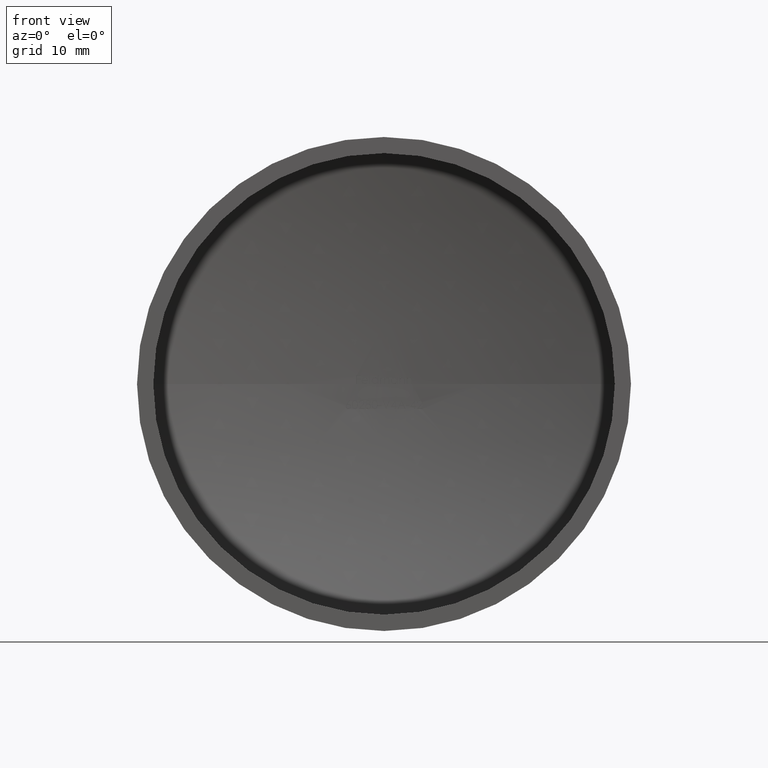
[diagram: clean part render]
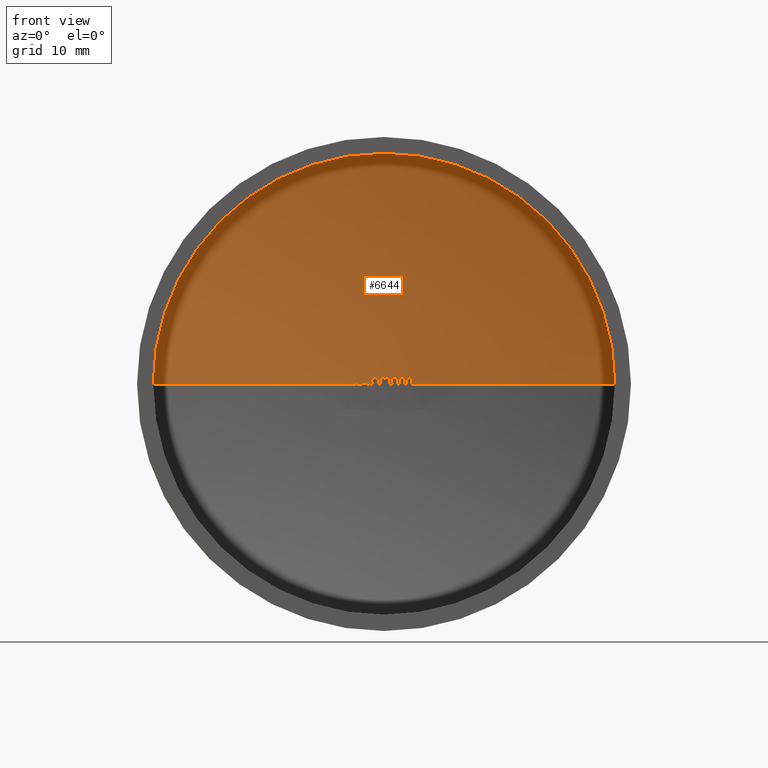
[diagram: same view with one face highlighted and labeled with its STEP entity id]
A machine part, front view. The second image highlights one B-rep face of the part: STEP entity #6644.
In plain terms, the highlighted spherical surface has radius 74.1067 mm.
Its self-contained STEP definition (entity closure, byte-faithful):
#4 = CARTESIAN_POINT ( 'NONE',  ( 0.0000000000000000000, -55.60666666666665500, 0.2747596153846200700 ) ) ;
#7 = CARTESIAN_POINT ( 'NONE',  ( 0.05066105627765697000, 18.49811280627313400, 0.5280834822135470600 ) ) ;
#8 = DIRECTION ( 'NONE',  ( 0.0000000000000000000, 0.0000000000000000000, 1.000000000000000000 ) ) ;
#14 = EDGE_CURVE ( 'NONE', #7552, #7424, #410, .T. ) ;
#15 = CARTESIAN_POINT ( 'NONE',  ( -0.5342548076922977200, 18.49807418197878300, 4.684274006738621800E-015 ) ) ;
#21 = DIRECTION ( 'NONE',  ( -3.555239804059509600E-016, -1.000000000000000000, 0.0000000000000000000 ) ) ;
#63 = CARTESIAN_POINT ( 'NONE',  ( -1.043093693751054000, 18.49266601434318600, 0.05672993365770655900 ) ) ;
#81 = ORIENTED_EDGE ( 'NONE', *, *, #5826, .F. ) ;
#91 = VERTEX_POINT ( 'NONE', #8479 ) ;
#101 = ORIENTED_EDGE ( 'NONE', *, *, #10779, .F. ) ;
#169 = CARTESIAN_POINT ( 'NONE',  ( -0.6054887820512984100, -55.60666666666665500, 0.0000000000000000000 ) ) ;
#191 = AXIS2_PLACEMENT_3D ( 'NONE', #8519, #631, #5612 ) ;
#211 = VERTEX_POINT ( 'NONE', #3797 ) ;
#213 = DIRECTION ( 'NONE',  ( -1.000000000000000000, 1.628848334250523600E-016, 0.0000000000000000000 ) ) ;
#223 = DIRECTION ( 'NONE',  ( -1.000000000000000000, 1.083564322627018500E-012, 0.0000000000000000000 ) ) ;
#234 = CARTESIAN_POINT ( 'NONE',  ( -2.043311245687180900, 18.47170804972493800, 0.1353877603241394600 ) ) ;
#246 = VERTEX_POINT ( 'NONE', #11748 ) ;
#282 = ORIENTED_EDGE ( 'NONE', *, *, #4225, .F. ) ;
#302 = EDGE_CURVE ( 'NONE', #8993, #11407, #3411, .T. ) ;
#316 = DIRECTION ( 'NONE',  ( -0.8853521223964576600, 2.178738343398190700E-012, 0.4649210893991452300 ) ) ;
#317 = CARTESIAN_POINT ( 'NONE',  ( -1.874030332595353600, 18.47630070611719700, -6.207692712189953600E-016 ) ) ;
#322 = ORIENTED_EDGE ( 'NONE', *, *, #12520, .F. ) ;
#362 = ORIENTED_EDGE ( 'NONE', *, *, #2696, .T. ) ;
#370 = EDGE_CURVE ( 'NONE', #11405, #5147, #10157, .T. ) ;
#379 = CIRCLE ( 'NONE', #12518, 74.08183610918798900 ) ;
#399 = CARTESIAN_POINT ( 'NONE',  ( -1.696892095007799300, 18.47830196389708800, 0.5814064970193278900 ) ) ;
#403 = CARTESIAN_POINT ( 'NONE',  ( 2.286341333750979900, 18.46246044500906400, 0.5804598663080393600 ) ) ;
#410 = CIRCLE ( 'NONE', #7154, 74.10439655427268200 ) ;
#437 = CARTESIAN_POINT ( 'NONE',  ( -0.2197440905448643200, 18.49755217920244400, 0.5608085436698764200 ) ) ;
#471 = DIRECTION ( 'NONE',  ( -1.000000000000000000, 3.548256100095867200E-016, -0.0000000000000000000 ) ) ;
#490 = CARTESIAN_POINT ( 'NONE',  ( 2.152283653846163200, 18.46646789469970400, 0.5800480769230815800 ) ) ;
#522 = ORIENTED_EDGE ( 'NONE', *, *, #10106, .F. ) ;
#534 = CARTESIAN_POINT ( 'NONE',  ( -0.2575337182896894600, 18.49765162660669300, 0.5308713528150776900 ) ) ;
#558 = VERTEX_POINT ( 'NONE', #5687 ) ;
#582 = CARTESIAN_POINT ( 'NONE',  ( -0.2356528369477877700, 18.49758592678110200, 0.5498660929433167900 ) ) ;
#585 = CARTESIAN_POINT ( 'NONE',  ( 2.589863782051264900, -55.60666666666665500, 0.0000000000000000000 ) ) ;
#594 = CARTESIAN_POINT ( 'NONE',  ( -0.9864561351360406900, 18.49346130273808300, 0.01659212628795113400 ) ) ;
#624 = CARTESIAN_POINT ( 'NONE',  ( -1.608716629506450300, 18.48240274425509400, 0.1474054408277837600 ) ) ;
#631 = DIRECTION ( 'NONE',  ( -0.0000000000000000000, 0.0000000000000000000, -1.000000000000000000 ) ) ;
#660 = EDGE_CURVE ( 'NONE', #1206, #246, #11162, .T. ) ;
#663 = DIRECTION ( 'NONE',  ( -1.224646799147353200E-016, 1.887011945462010500E-032, 1.000000000000000000 ) ) ;
#668 = VERTEX_POINT ( 'NONE', #2970 ) ;
#754 = AXIS2_PLACEMENT_3D ( 'NONE', #9756, #12505, #10545 ) ;
#756 = AXIS2_PLACEMENT_3D ( 'NONE', #8837, #3927, #6849 ) ;
#779 = ORIENTED_EDGE ( 'NONE', *, *, #6042, .T. ) ;
#821 = CARTESIAN_POINT ( 'NONE',  ( 2.589863782051291500, 18.45413876143830800, 0.2962252103365430900 ) ) ;
#869 = CARTESIAN_POINT ( 'NONE',  ( 2.578496398894723800, 18.45386147609267300, 0.4344880739606071200 ) ) ;
#893 = VERTEX_POINT ( 'NONE', #10958 ) ;
#894 = CARTESIAN_POINT ( 'NONE',  ( -0.3002003205128393500, -55.60666666666665500, 0.0000000000000000000 ) ) ;
#926 = CARTESIAN_POINT ( 'NONE',  ( -2.008529856845667500, 18.47237094073812700, 0.2466409376561771700 ) ) ;
#959 = ORIENTED_EDGE ( 'NONE', *, *, #2137, .F. ) ;
#1007 = CARTESIAN_POINT ( 'NONE',  ( -1.287299679487170100, 18.48881837783275400, 4.684274006738621800E-015 ) ) ;
#1017 = CARTESIAN_POINT ( 'NONE',  ( -2.009815705128197300, 18.47223176216811100, 0.2747596153846200700 ) ) ;
#1041 = ORIENTED_EDGE ( 'NONE', *, *, #3809, .T. ) ;
#1054 = CARTESIAN_POINT ( 'NONE',  ( -2.035141091583788900, 18.47066646842905200, 0.4540729119043393500 ) ) ;
#1069 = EDGE_CURVE ( 'NONE', #6619, #10557, #6026, .T. ) ;
#1105 = AXIS2_PLACEMENT_3D ( 'NONE', #1770, #1818, #5782 ) ;
#1141 = EDGE_CURVE ( 'NONE', #10760, #91, #7728, .T. ) ;
#1152 = CARTESIAN_POINT ( 'NONE',  ( -1.143708761880699600, 18.49044319335287400, 0.3314743180730902500 ) ) ;
#1180 = CIRCLE ( 'NONE', #12271, 74.10666666666665500 ) ;
#1197 = AXIS2_PLACEMENT_3D ( 'NONE', #8255, #2317, #9225 ) ;
#1206 = VERTEX_POINT ( 'NONE', #9952 ) ;
#1221 = CARTESIAN_POINT ( 'NONE',  ( -2.498277243589761600, -55.60666666666665500, 0.0000000000000000000 ) ) ;
#1223 = CARTESIAN_POINT ( 'NONE',  ( 0.1897252796958431300, 18.49762059824084700, 0.5631642986092110200 ) ) ;
#1225 = ORIENTED_EDGE ( 'NONE', *, *, #6889, .F. ) ;
#1230 = CIRCLE ( 'NONE', #4852, 74.10666666666665500 ) ;
#1239 = DIRECTION ( 'NONE',  ( -3.571340827431456200E-016, -1.000000000000000000, 0.0000000000000000000 ) ) ;
#1240 = CIRCLE ( 'NONE', #756, 74.10324295558288600 ) ;
#1300 = EDGE_CURVE ( 'NONE', #7880, #7058, #2159, .T. ) ;
#1320 = CIRCLE ( 'NONE', #5103, 74.06454384696230900 ) ;
#1321 = DIRECTION ( 'NONE',  ( 1.540862187183947000E-016, 1.000000000000000000, -0.0000000000000000000 ) ) ;
#1330 = CARTESIAN_POINT ( 'NONE',  ( -0.1820173534637724000, 18.49752656585533500, 0.5778261105708482100 ) ) ;
#1345 = CARTESIAN_POINT ( 'NONE',  ( 0.7943935996191957600, 18.49576918712202600, 0.01659202789704676900 ) ) ;
#1349 = CIRCLE ( 'NONE', #3265, 74.09187352786638300 ) ;
#1356 = EDGE_CURVE ( 'NONE', #12026, #9048, #4064, .T. ) ;
#1372 = VERTEX_POINT ( 'NONE', #10417 ) ;
#1398 = VERTEX_POINT ( 'NONE', #7470 ) ;
#1425 = CIRCLE ( 'NONE', #2694, 74.07451231047211600 ) ;
#1538 = ORIENTED_EDGE ( 'NONE', *, *, #1300, .F. ) ;
#1544 = DIRECTION ( 'NONE',  ( -1.000000000000000000, 3.548256100095867200E-016, -0.0000000000000000000 ) ) ;
#1557 = DIRECTION ( 'NONE',  ( -0.0000000000000000000, -0.0000000000000000000, 1.000000000000000000 ) ) ;
#1590 = ORIENTED_EDGE ( 'NONE', *, *, #302, .F. ) ;
#1608 = CARTESIAN_POINT ( 'NONE',  ( -0.2773739530890266800, 18.49772822583843600, 0.5100305852008952800 ) ) ;
#1621 = EDGE_CURVE ( 'NONE', #1765, #10385, #3713, .T. ) ;
#1641 = DIRECTION ( 'NONE',  ( -0.0000000000000000000, 0.0000000000000000000, -1.000000000000000000 ) ) ;
#1657 = CIRCLE ( 'NONE', #4343, 21.29999999999999400 ) ;
#1658 = EDGE_CURVE ( 'NONE', #6473, #668, #3645, .T. ) ;
#1667 = B_SPLINE_CURVE_WITH_KNOTS ( 'NONE', 3,
 ( #2195, #12081, #9097, #8916, #10969, #11952, #8038, #11991 ),
 .UNSPECIFIED., .F., .F.,
 ( 4, 2, 2, 4 ),
 ( 0.0000000000000000000, 0.0001925376673003478800, 0.0002888065009505216400, 0.0003850753346006954800 ),
 .UNSPECIFIED. ) ;
#1696 = AXIS2_PLACEMENT_3D ( 'NONE', #6658, #663, #10581 ) ;
#1698 = CIRCLE ( 'NONE', #1696, 74.10666666666665500 ) ;
#1722 = CARTESIAN_POINT ( 'NONE',  ( -1.532721009298437800, 18.48280775393716600, 0.4470812287143138300 ) ) ;
#1728 = CARTESIAN_POINT ( 'NONE',  ( -1.636551691630240500, 18.48185408225441200, 0.1125810353599013700 ) ) ;
#1733 = EDGE_CURVE ( 'NONE', #8003, #10930, #1240, .T. ) ;
#1765 = VERTEX_POINT ( 'NONE', #11096 ) ;
#1770 = CARTESIAN_POINT ( 'NONE',  ( 0.0000000000000000000, -55.60666666666665500, 0.8141025641025687600 ) ) ;
#1813 = B_SPLINE_CURVE_WITH_KNOTS ( 'NONE', 3,
 ( #3115, #3195, #8175, #2232, #10025, #9053, #11998, #6077, #1152, #10071 ),
 .UNSPECIFIED., .F., .F.,
 ( 4, 2, 2, 2, 4 ),
 ( 1.084202172485504400E-019, 0.0001177946587169052000, 0.0002355893174338100000, 0.0003533839761507145400, 0.0004711786348676191400 ),
 .UNSPECIFIED. ) ;
#1818 = DIRECTION ( 'NONE',  ( -0.0000000000000000000, -0.0000000000000000000, 1.000000000000000000 ) ) ;
#1823 = CIRCLE ( 'NONE', #2697, 74.10439655427268200 ) ;
#1877 = CARTESIAN_POINT ( 'NONE',  ( 1.736352759386079500, 18.47732230303316600, 0.5890071150332940600 ) ) ;
#1883 = ORIENTED_EDGE ( 'NONE', *, *, #6281, .F. ) ;
#1896 = B_SPLINE_CURVE_WITH_KNOTS ( 'NONE', 3,
 ( #12298, #1924, #8731, #3922, #11848, #9926 ),
 .UNSPECIFIED., .F., .F.,
 ( 4, 2, 4 ),
 ( 8.594326404734144600E-005, 0.0002067113809952575800, 0.0003274794979431737100 ),
 .UNSPECIFIED. ) ;
#1908 = EDGE_CURVE ( 'NONE', #8832, #10760, #10979, .T. ) ;
#1924 = CARTESIAN_POINT ( 'NONE',  ( -1.664765156588535100, 18.48130896417959000, 0.01019131546964269200 ) ) ;
#1991 = ORIENTED_EDGE ( 'NONE', *, *, #7491, .F. ) ;
#1992 = B_SPLINE_CURVE_WITH_KNOTS ( 'NONE', 3,
 ( #6562, #624, #1728, #8671, #9615, #10547 ),
 .UNSPECIFIED., .F., .F.,
 ( 4, 2, 4 ),
 ( 8.131516293641283300E-020, 0.0001286050442404798600, 0.0002572100884809596600 ),
 .UNSPECIFIED. ) ;
#2023 = AXIS2_PLACEMENT_3D ( 'NONE', #5741, #8800, #2880 ) ;
#2046 = CARTESIAN_POINT ( 'NONE',  ( 2.081049679487188400, 18.46850340336699100, 0.5800480769230815800 ) ) ;
#2069 = CARTESIAN_POINT ( 'NONE',  ( -1.798180839342941700, 18.47815540959721400, 0.06105769230769700400 ) ) ;
#2075 = AXIS2_PLACEMENT_3D ( 'NONE', #6520, #11414, #9312 ) ;
#2099 = CARTESIAN_POINT ( 'NONE',  ( -0.6054887820512721000, 18.49305441779071300, 0.8141025641025687600 ) ) ;
#2106 = CIRCLE ( 'NONE', #3854, 74.07744107807685900 ) ;
#2109 = CARTESIAN_POINT ( 'NONE',  ( 0.0000000000000000000, -55.60666666666665500, 0.0000000000000000000 ) ) ;
#2120 = CARTESIAN_POINT ( 'NONE',  ( -0.1209624566836962500, 18.49755769712012600, 0.5894505735695804200 ) ) ;
#2137 = EDGE_CURVE ( 'NONE', #668, #11750, #11343, .T. ) ;
#2156 = ORIENTED_EDGE ( 'NONE', *, *, #2635, .F. ) ;
#2159 = B_SPLINE_CURVE_WITH_KNOTS ( 'NONE', 3,
 ( #5181, #7307, #10284, #5301, #1223, #6182, #10171, #8140 ),
 .UNSPECIFIED., .F., .F.,
 ( 4, 2, 2, 4 ),
 ( 0.0000000000000000000, 6.662288295076058800E-005, 0.0001332457659015212600, 0.0002664915318030427300 ),
 .UNSPECIFIED. ) ;
#2179 = CARTESIAN_POINT ( 'NONE',  ( -2.081049679487172000, 18.47021287416464500, 0.2884339943910302900 ) ) ;
#2195 = CARTESIAN_POINT ( 'NONE',  ( 0.4935496794871870300, 18.49769039889563500, 0.3141927083333379600 ) ) ;
#2199 = DIRECTION ( 'NONE',  ( 1.000000000000000000, 0.0000000000000000000, 1.224646799147353200E-016 ) ) ;
#2218 = VERTEX_POINT ( 'NONE', #9575 ) ;
#2224 = EDGE_CURVE ( 'NONE', #558, #7618, #1698, .T. ) ;
#2231 = CARTESIAN_POINT ( 'NONE',  ( -1.787527544070505800, 18.47608723010547700, 0.5902243589743636500 ) ) ;
#2232 = CARTESIAN_POINT ( 'NONE',  ( -0.9927749141653752200, 18.49129141051156800, 0.5537426519913462000 ) ) ;
#2270 = VERTEX_POINT ( 'NONE', #5695 ) ;
#2274 = EDGE_CURVE ( 'NONE', #3083, #6473, #5701, .T. ) ;
#2296 = EDGE_CURVE ( 'NONE', #5563, #5136, #6640, .T. ) ;
#2297 = CIRCLE ( 'NONE', #9413, 74.10666666666665500 ) ;
#2317 = DIRECTION ( 'NONE',  ( -0.0000000000000000000, 0.0000000000000000000, -1.000000000000000000 ) ) ;
#2320 = CARTESIAN_POINT ( 'NONE',  ( -1.874030332595353600, 18.47630070611719700, -6.207692712189953600E-016 ) ) ;
#2329 = CARTESIAN_POINT ( 'NONE',  ( 0.0000000000000000000, -55.60666666666665500, 0.0000000000000000000 ) ) ;
#2359 = EDGE_CURVE ( 'NONE', #5226, #3390, #11584, .T. ) ;
#2391 = CARTESIAN_POINT ( 'NONE',  ( -1.553950070112172200, 18.48217629411369600, 0.4760591947115431200 ) ) ;
#2396 = FACE_OUTER_BOUND ( 'NONE', #10602, .T. ) ;
#2402 = CARTESIAN_POINT ( 'NONE',  ( 1.538826675526062200, 18.48206110626480800, 0.5406571205251827800 ) ) ;
#2427 = DIRECTION ( 'NONE',  ( 3.541125742285483000E-016, 1.000000000000000000, -1.847411112976260700E-013 ) ) ;
#2451 = ORIENTED_EDGE ( 'NONE', *, *, #3830, .F. ) ;
#2483 = EDGE_CURVE ( 'NONE', #10395, #8836, #10831, .T. ) ;
#2514 = ORIENTED_EDGE ( 'NONE', *, *, #5174, .F. ) ;
#2526 = ORIENTED_EDGE ( 'NONE', *, *, #2274, .F. ) ;
#2539 = CARTESIAN_POINT ( 'NONE',  ( -2.014267828525633700, 18.47105162862099100, 0.4821013621794918400 ) ) ;
#2587 = CARTESIAN_POINT ( 'NONE',  ( -1.874913986319146900, 18.47400395536118700, 0.5821107416868394100 ) ) ;
#2618 = CARTESIAN_POINT ( 'NONE',  ( 2.589863782051291500, 18.45473117346907400, 4.684274006738621800E-015 ) ) ;
#2622 = CIRCLE ( 'NONE', #3127, 74.07451231047211600 ) ;
#2635 = EDGE_CURVE ( 'NONE', #5147, #8798, #5709, .T. ) ;
#2690 = CARTESIAN_POINT ( 'NONE',  ( 1.859677344651412300, 18.47479467738343600, 0.5271992639889260300 ) ) ;
#2694 = AXIS2_PLACEMENT_3D ( 'NONE', #12530, #10687, #2982 ) ;
#2696 = EDGE_CURVE ( 'NONE', #4889, #3887, #1230, .T. ) ;
#2697 = AXIS2_PLACEMENT_3D ( 'NONE', #11580, #10513, #3719 ) ;
#2702 = ORIENTED_EDGE ( 'NONE', *, *, #5249, .F. ) ;
#2710 = CARTESIAN_POINT ( 'NONE',  ( 0.6981847243553225300, 18.49519188754984400, 0.4761451062352789500 ) ) ;
#2731 = ORIENTED_EDGE ( 'NONE', *, *, #660, .F. ) ;
#2732 = ORIENTED_EDGE ( 'NONE', *, *, #1356, .F. ) ;
#2741 = CIRCLE ( 'NONE', #8512, 74.10666666666665500 ) ;
#2749 = CARTESIAN_POINT ( 'NONE',  ( -0.5342548076922977200, 18.49360224823014300, 0.8141025641025687600 ) ) ;
#2783 = DIRECTION ( 'NONE',  ( 1.000000000000000000, -3.548256100095867200E-016, -0.0000000000000000000 ) ) ;
#2795 = CARTESIAN_POINT ( 'NONE',  ( 0.4935496794871870300, 18.49769039889563500, 0.3141927083333379600 ) ) ;
#2799 = DIRECTION ( 'NONE',  ( -0.0000000000000000000, 0.0000000000000000000, -1.000000000000000000 ) ) ;
#2806 = CARTESIAN_POINT ( 'NONE',  ( 0.0000000000000000000, -55.60666666666665500, 0.4681089743589790200 ) ) ;
#2825 = CARTESIAN_POINT ( 'NONE',  ( 2.504589535343154000, 18.45562226097474200, 0.5510317446698561600 ) ) ;
#2847 = CARTESIAN_POINT ( 'NONE',  ( -1.287299679487170100, 18.48434588542874500, 0.8141025641025687600 ) ) ;
#2880 = DIRECTION ( 'NONE',  ( -1.000000000000000000, -1.088901616646180300E-012, 0.0000000000000000000 ) ) ;
#2885 = ORIENTED_EDGE ( 'NONE', *, *, #5698, .F. ) ;
#2898 = CIRCLE ( 'NONE', #9582, 74.10666666666665500 ) ;
#2905 = CARTESIAN_POINT ( 'NONE',  ( 1.480649038461521400, -55.60666666666665500, 0.0000000000000000000 ) ) ;
#2949 = CARTESIAN_POINT ( 'NONE',  ( -2.080108460737630300, 18.47010334819623600, 0.3233538205564962500 ) ) ;
#2970 = CARTESIAN_POINT ( 'NONE',  ( 2.372981770833342300, 18.45964576459867200, 0.5902243589743636500 ) ) ;
#2982 = DIRECTION ( 'NONE',  ( -3.571340827431456200E-016, -1.000000000000000000, 0.0000000000000000000 ) ) ;
#2986 = DIRECTION ( 'NONE',  ( 1.000000000000000000, -3.548256100095867200E-016, -0.0000000000000000000 ) ) ;
#2991 = CARTESIAN_POINT ( 'NONE',  ( -2.014267828525633700, 18.47105162862099100, 0.4821013621794918400 ) ) ;
#2993 = CARTESIAN_POINT ( 'NONE',  ( -2.081049679487172000, 18.47021287416464500, 0.2884339943910302900 ) ) ;
#3012 = ORIENTED_EDGE ( 'NONE', *, *, #8239, .F. ) ;
#3013 = CARTESIAN_POINT ( 'NONE',  ( 0.07030896038970899100, 18.49836238468809000, 0.4893986172558689700 ) ) ;
#3014 = DIRECTION ( 'NONE',  ( -1.000000000000000000, 1.872677376009507700E-016, 0.0000000000000000000 ) ) ;
#3015 = VERTEX_POINT ( 'NONE', #2391 ) ;
#3030 = CARTESIAN_POINT ( 'NONE',  ( 1.147242004199455100, 18.48938671174167000, 0.5087672027378591400 ) ) ;
#3072 = CARTESIAN_POINT ( 'NONE',  ( 2.081049679487162200, -55.60666666666665500, 0.0000000000000000000 ) ) ;
#3083 = VERTEX_POINT ( 'NONE', #2618 ) ;
#3093 = CARTESIAN_POINT ( 'NONE',  ( -0.6337943017023882600, 18.49558892450381000, 0.5041731943620729700 ) ) ;
#3110 = DIRECTION ( 'NONE',  ( 3.541171164500310700E-016, 1.000000000000000000, 1.660893644839234200E-013 ) ) ;
#3115 = CARTESIAN_POINT ( 'NONE',  ( -0.8401792868589645900, 18.49288649269086100, 0.5902243589743636500 ) ) ;
#3127 = AXIS2_PLACEMENT_3D ( 'NONE', #12112, #12037, #1239 ) ;
#3159 = CARTESIAN_POINT ( 'NONE',  ( 0.0000000000000000000, -55.60666666666665500, 0.0000000000000000000 ) ) ;
#3165 = CARTESIAN_POINT ( 'NONE',  ( 0.0000000000000000000, -55.60666666666665500, 0.0000000000000000000 ) ) ;
#3189 = SPHERICAL_SURFACE ( 'NONE', #8708, 74.10666666666665500 ) ;
#3195 = CARTESIAN_POINT ( 'NONE',  ( -0.8798126087690755200, 18.49244615660750300, 0.5890885381431688600 ) ) ;
#3206 = VERTEX_POINT ( 'NONE', #5120 ) ;
#3207 = VERTEX_POINT ( 'NONE', #10009 ) ;
#3240 = CARTESIAN_POINT ( 'NONE',  ( -21.29999999999998600, 15.37296452739100500, 0.0000000000000000000 ) ) ;
#3256 = CARTESIAN_POINT ( 'NONE',  ( 1.918126692175456500, 18.47444075342073300, 0.3310104072752084700 ) ) ;
#3260 = CARTESIAN_POINT ( 'NONE',  ( -0.2671245571334133200, -55.60666666666665500, -0.5086869556894660900 ) ) ;
#3265 = AXIS2_PLACEMENT_3D ( 'NONE', #2905, #9873, #4888 ) ;
#3266 = ORIENTED_EDGE ( 'NONE', *, *, #14, .F. ) ;
#3286 = VERTEX_POINT ( 'NONE', #4552 ) ;
#3292 = CARTESIAN_POINT ( 'NONE',  ( -2.080134287794697600, 18.47036288979697700, 0.2565108698060550300 ) ) ;
#3295 = CARTESIAN_POINT ( 'NONE',  ( -2.182812499999991400, 18.46442044648424700, 0.7123397435897482800 ) ) ;
#3298 = DIRECTION ( 'NONE',  ( -1.000000000000000000, -1.080942493986026800E-012, 0.0000000000000000000 ) ) ;
#3316 = B_SPLINE_CURVE_WITH_KNOTS ( 'NONE', 3,
 ( #5636, #9694, #8700, #7724, #1722, #8619 ),
 .UNSPECIFIED., .F., .F.,
 ( 4, 2, 4 ),
 ( 0.0000000000000000000, 0.0001078334363152171600, 0.0002156668726304343200 ),
 .UNSPECIFIED. ) ;
#3390 = VERTEX_POINT ( 'NONE', #4004 ) ;
#3407 = CARTESIAN_POINT ( 'NONE',  ( 1.614702159085610100, 18.48014515297195000, 0.5804584478959458100 ) ) ;
#3411 = CIRCLE ( 'NONE', #2023, 74.10439655427268200 ) ;
#3412 = DIRECTION ( 'NONE',  ( -1.224646799147353200E-016, 1.887011945462010500E-032, 1.000000000000000000 ) ) ;
#3413 = CARTESIAN_POINT ( 'NONE',  ( -0.2505368558799602700, 18.49762725045939500, 0.5375798062616176100 ) ) ;
#3493 = CARTESIAN_POINT ( 'NONE',  ( -1.787527544070505800, 18.47608723010547700, 0.5902243589743636500 ) ) ;
#3537 = ORIENTED_EDGE ( 'NONE', *, *, #5395, .F. ) ;
#3547 = CARTESIAN_POINT ( 'NONE',  ( -1.831114630434588400, 18.47504542124350700, 0.5889823771727069600 ) ) ;
#3583 = CARTESIAN_POINT ( 'NONE',  ( -1.953204717665862900, 18.47226074718819400, 0.5453620125871462300 ) ) ;
#3595 = CARTESIAN_POINT ( 'NONE',  ( -0.9230864176096714700, 18.49425070896418400, 1.514071393217061900E-017 ) ) ;
#3612 = CARTESIAN_POINT ( 'NONE',  ( -2.182812499999991400, 18.46683627558540100, 0.3866987179487225700 ) ) ;
#3627 = B_SPLINE_CURVE_WITH_KNOTS ( 'NONE', 3,
 ( #5236, #12258, #11237, #399, #6221, #7218 ),
 .UNSPECIFIED., .F., .F.,
 ( 4, 2, 4 ),
 ( 0.0000000000000000000, 0.0001342962369920497400, 0.0002685924739840994800 ),
 .UNSPECIFIED. ) ;
#3645 = B_SPLINE_CURVE_WITH_KNOTS ( 'NONE', 3,
 ( #821, #12618, #8736, #869, #7813, #11683, #2825, #11566, #9745, #3835 ),
 .UNSPECIFIED., .F., .F.,
 ( 4, 2, 2, 2, 4 ),
 ( 5.421010862427522200E-020, 0.0001040471827471912700, 0.0002080943654943824800, 0.0003121415482415737100, 0.0004161887309887649100 ),
 .UNSPECIFIED. ) ;
#3690 = VERTEX_POINT ( 'NONE', #10461 ) ;
#3706 = EDGE_CURVE ( 'NONE', #10385, #10146, #1823, .T. ) ;
#3711 = DIRECTION ( 'NONE',  ( -3.541031697138002700E-016, -1.000000000000000000, 0.0000000000000000000 ) ) ;
#3713 = CIRCLE ( 'NONE', #4008, 74.09618105185421700 ) ;
#3719 = DIRECTION ( 'NONE',  ( -1.000000000000000000, -1.084500689998801200E-012, 0.0000000000000000000 ) ) ;
#3730 = DIRECTION ( 'NONE',  ( -0.0000000000000000000, -0.0000000000000000000, 1.000000000000000000 ) ) ;
#3736 = VERTEX_POINT ( 'NONE', #10668 ) ;
#3797 = CARTESIAN_POINT ( 'NONE',  ( 1.480649038461547600, 18.48368152843929500, 0.4754231770833379800 ) ) ;
#3809 = EDGE_CURVE ( 'NONE', #8832, #9222, #2741, .T. ) ;
#3820 = ORIENTED_EDGE ( 'NONE', *, *, #10981, .F. ) ;
#3822 = ORIENTED_EDGE ( 'NONE', *, *, #1658, .F. ) ;
#3830 = EDGE_CURVE ( 'NONE', #7058, #11405, #6400, .T. ) ;
#3835 = CARTESIAN_POINT ( 'NONE',  ( 2.372981770833342300, 18.45964576459867200, 0.5902243589743636500 ) ) ;
#3854 = AXIS2_PLACEMENT_3D ( 'NONE', #3072, #8009, #5000 ) ;
#3860 = EDGE_CURVE ( 'NONE', #6925, #2270, #6153, .T. ) ;
#3875 = CARTESIAN_POINT ( 'NONE',  ( -1.140303931640450600, 18.49088870356599300, 0.2261230623103861700 ) ) ;
#3879 = ORIENTED_EDGE ( 'NONE', *, *, #10585, .F. ) ;
#3887 = VERTEX_POINT ( 'NONE', #2320 ) ;
#3909 = CARTESIAN_POINT ( 'NONE',  ( -2.569511217948735800, -55.60666666666665500, 0.0000000000000000000 ) ) ;
#3914 = DIRECTION ( 'NONE',  ( 1.000000000000000000, -3.548256100095867200E-016, -0.0000000000000000000 ) ) ;
#3922 = CARTESIAN_POINT ( 'NONE',  ( -1.565010912444176700, 18.48343991480959000, 0.08098918739304837600 ) ) ;
#3927 = DIRECTION ( 'NONE',  ( -0.0000000000000000000, 0.0000000000000000000, -1.000000000000000000 ) ) ;
#3978 = CARTESIAN_POINT ( 'NONE',  ( -0.1519245814674372000, 18.49753403126227300, 0.5852441655852319600 ) ) ;
#4004 = CARTESIAN_POINT ( 'NONE',  ( -2.498277243589734900, 18.45639787461957200, 0.4681089743589790200 ) ) ;
#4008 = AXIS2_PLACEMENT_3D ( 'NONE', #10654, #2783, #3711 ) ;
#4021 = CIRCLE ( 'NONE', #4377, 74.09421320694221400 ) ;
#4061 = DIRECTION ( 'NONE',  ( 3.555279628127301000E-016, 1.000000000000000000, 5.844214001626824000E-013 ) ) ;
#4064 = B_SPLINE_CURVE_WITH_KNOTS ( 'NONE', 3,
 ( #3493, #3547, #2587, #3583, #8471, #2539 ),
 .UNSPECIFIED., .F., .F.,
 ( 4, 2, 4 ),
 ( 0.0000000000000000000, 0.0001305415399782158100, 0.0002610830799564316200 ),
 .UNSPECIFIED. ) ;
#4091 = VERTEX_POINT ( 'NONE', #4314 ) ;
#4095 = ORIENTED_EDGE ( 'NONE', *, *, #4961, .F. ) ;
#4107 = DIRECTION ( 'NONE',  ( -1.000000000000000000, 0.0000000000000000000, 0.0000000000000000000 ) ) ;
#4112 = ORIENTED_EDGE ( 'NONE', *, *, #370, .F. ) ;
#4159 = CARTESIAN_POINT ( 'NONE',  ( 1.113902103417746300, 18.48966195693888900, 0.5416671381265431000 ) ) ;
#4179 = CARTESIAN_POINT ( 'NONE',  ( -0.7938917921865782400, 18.49342219501706500, 0.5888596089068165500 ) ) ;
#4225 = EDGE_CURVE ( 'NONE', #3690, #6619, #4296, .T. ) ;
#4271 = CIRCLE ( 'NONE', #754, 74.10573581720267100 ) ;
#4280 = CARTESIAN_POINT ( 'NONE',  ( 0.6770339656753896500, 18.49679262797088000, 0.1344265103071695100 ) ) ;
#4296 = CIRCLE ( 'NONE', #10660, 74.10241565146132800 ) ;
#4314 = CARTESIAN_POINT ( 'NONE',  ( -0.3714342948717874200, 18.49906915053602000, 4.684274006738621800E-015 ) ) ;
#4332 = CARTESIAN_POINT ( 'NONE',  ( 1.175360576923084600, 18.48840817766504700, 0.5800480769230815800 ) ) ;
#4343 = AXIS2_PLACEMENT_3D ( 'NONE', #12151, #1321, #213 ) ;
#4369 = CARTESIAN_POINT ( 'NONE',  ( 1.701347155448727200, 18.47811650442161700, 0.5902243589743636500 ) ) ;
#4377 = AXIS2_PLACEMENT_3D ( 'NONE', #7450, #1544, #2427 ) ;
#4449 = ORIENTED_EDGE ( 'NONE', *, *, #6229, .T. ) ;
#4460 = VERTEX_POINT ( 'NONE', #5246 ) ;
#4552 = CARTESIAN_POINT ( 'NONE',  ( -1.703891225944820500, 18.48040912347768800, 4.357549175688954700E-012 ) ) ;
#4581 = CARTESIAN_POINT ( 'NONE',  ( -0.2197440905448643200, 18.49755217920244400, 0.5608085436698764200 ) ) ;
#4621 = CIRCLE ( 'NONE', #7443, 74.10666666666665500 ) ;
#4625 = CARTESIAN_POINT ( 'NONE',  ( -1.144831730769221100, 18.49058271534169500, 0.2916140825320559500 ) ) ;
#4710 = EDGE_CURVE ( 'NONE', #12600, #5829, #1813, .T. ) ;
#4711 = CARTESIAN_POINT ( 'NONE',  ( 0.0000000000000000000, -55.60666666666665500, 0.8141025641025687600 ) ) ;
#4748 = ORIENTED_EDGE ( 'NONE', *, *, #1908, .F. ) ;
#4801 = DIRECTION ( 'NONE',  ( 1.000000000000000000, -3.548256100095867200E-016, -0.0000000000000000000 ) ) ;
#4805 = DIRECTION ( 'NONE',  ( 3.571939034522588800E-016, 1.000000000000000000, -2.078337502098292800E-013 ) ) ;
#4850 = CARTESIAN_POINT ( 'NONE',  ( -1.287299679487196300, -55.60666666666665500, 0.0000000000000000000 ) ) ;
#4852 = AXIS2_PLACEMENT_3D ( 'NONE', #5737, #1641, #10713 ) ;
#4855 = CARTESIAN_POINT ( 'NONE',  ( -0.3002003205128130300, 18.49712182245490100, 0.5800480769230815800 ) ) ;
#4863 = EDGE_CURVE ( 'NONE', #893, #10411, #7524, .T. ) ;
#4888 = DIRECTION ( 'NONE',  ( -3.541237564235848400E-016, -1.000000000000000000, 0.0000000000000000000 ) ) ;
#4889 = VERTEX_POINT ( 'NONE', #5330 ) ;
#4957 = CARTESIAN_POINT ( 'NONE',  ( 0.08443134014423828200, 18.49858475618801300, 0.4501414763621841600 ) ) ;
#4961 = EDGE_CURVE ( 'NONE', #7618, #8588, #379, .T. ) ;
#4989 = CARTESIAN_POINT ( 'NONE',  ( 1.918229166666676000, 18.47516944252135200, 4.684274006738621800E-015 ) ) ;
#5000 = DIRECTION ( 'NONE',  ( 3.571199628880741400E-016, 1.000000000000000000, -2.211564265053311800E-013 ) ) ;
#5010 = CARTESIAN_POINT ( 'NONE',  ( 0.4935496794871606600, -55.60666666666665500, 0.0000000000000000000 ) ) ;
#5069 = CARTESIAN_POINT ( 'NONE',  ( -0.8401792868589645900, 18.49288649269086100, 0.5902243589743636500 ) ) ;
#5071 = CARTESIAN_POINT ( 'NONE',  ( -0.6668395097509892700, 18.49506511699244600, 0.5374104213627037800 ) ) ;
#5103 = AXIS2_PLACEMENT_3D ( 'NONE', #1221, #6006, #10991 ) ;
#5107 = CARTESIAN_POINT ( 'NONE',  ( 2.589863782051291500, 18.45413876143830800, 0.2962252103365430900 ) ) ;
#5120 = CARTESIAN_POINT ( 'NONE',  ( 1.409415064102573300, 18.48659614191483400, 4.684274006738621800E-015 ) ) ;
#5127 = CARTESIAN_POINT ( 'NONE',  ( 1.918229166666676000, 18.47457719393110100, 0.2962252103365430900 ) ) ;
#5136 = VERTEX_POINT ( 'NONE', #3612 ) ;
#5147 = VERTEX_POINT ( 'NONE', #6376 ) ;
#5151 = B_SPLINE_CURVE_WITH_KNOTS ( 'NONE', 3,
 ( #10126, #10258, #6186, #11167, #4280, #7269, #1345, #7310 ),
 .UNSPECIFIED., .F., .F.,
 ( 4, 2, 2, 4 ),
 ( 0.0000000000000000000, 9.800431726346588400E-005, 0.0001960086345269317700, 0.0003920172690538638100 ),
 .UNSPECIFIED. ) ;
#5156 = CARTESIAN_POINT ( 'NONE',  ( 0.6360176282051359700, 18.49669686865422600, 0.2916140825320559500 ) ) ;
#5174 = EDGE_CURVE ( 'NONE', #246, #3015, #3316, .T. ) ;
#5179 = CARTESIAN_POINT ( 'NONE',  ( 1.701347155448727200, 18.47811650442161700, 0.5902243589743636500 ) ) ;
#5181 = CARTESIAN_POINT ( 'NONE',  ( 0.2971792367788536100, 18.49705364582335300, 0.5902243589743636500 ) ) ;
#5193 = CIRCLE ( 'NONE', #11197, 74.10605862014256200 ) ;
#5196 = ORIENTED_EDGE ( 'NONE', *, *, #4863, .F. ) ;
#5202 = ORIENTED_EDGE ( 'NONE', *, *, #9087, .F. ) ;
#5226 = VERTEX_POINT ( 'NONE', #9934 ) ;
#5236 = CARTESIAN_POINT ( 'NONE',  ( -1.553950070112172200, 18.48217629411369600, 0.4760591947115431200 ) ) ;
#5246 = CARTESIAN_POINT ( 'NONE',  ( -2.081049679487172000, 18.47021287416464500, 0.2884339943910302900 ) ) ;
#5249 = EDGE_CURVE ( 'NONE', #1372, #1206, #5459, .T. ) ;
#5301 = CARTESIAN_POINT ( 'NONE',  ( 0.2099600979435251600, 18.49748776520174700, 0.5733743151842626300 ) ) ;
#5329 = CARTESIAN_POINT ( 'NONE',  ( 1.032519156810956400, 18.49053896800452900, 0.5814791534884085100 ) ) ;
#5330 = CARTESIAN_POINT ( 'NONE',  ( -2.498277243589734900, 18.45787718029566400, 4.684274006738621800E-015 ) ) ;
#5357 = ORIENTED_EDGE ( 'NONE', *, *, #2296, .F. ) ;
#5375 = CIRCLE ( 'NONE', #10931, 74.09326280858148600 ) ;
#5395 = EDGE_CURVE ( 'NONE', #8585, #3207, #1657, .T. ) ;
#5396 = CARTESIAN_POINT ( 'NONE',  ( -0.2641929077407539900, 18.49767733642319100, 0.5238763438722859900 ) ) ;
#5415 = CARTESIAN_POINT ( 'NONE',  ( -2.498277243589734900, 18.45445152195041100, 0.7123397435897482800 ) ) ;
#5416 = CARTESIAN_POINT ( 'NONE',  ( 1.175360576923058400, -55.60666666666665500, 0.0000000000000000000 ) ) ;
#5459 = B_SPLINE_CURVE_WITH_KNOTS ( 'NONE', 3,
 ( #2069, #6897, #9886, #10018, #10888, #7957, #6948, #6993, #926, #1017 ),
 .UNSPECIFIED., .F., .F.,
 ( 4, 2, 2, 2, 4 ),
 ( 0.0000000000000000000, 8.345639824809239000E-005, 0.0001669127964961847800, 0.0002503691947442772000, 0.0003338255929923695600 ),
 .UNSPECIFIED. ) ;
#5463 = CARTESIAN_POINT ( 'NONE',  ( 0.0000000000000000000, -55.60666666666665500, 0.7937500000000046200 ) ) ;
#5537 = CARTESIAN_POINT ( 'NONE',  ( 0.7551759229509099600, 18.49425804876498300, 0.5313030246014264200 ) ) ;
#5563 = VERTEX_POINT ( 'NONE', #11267 ) ;
#5612 = DIRECTION ( 'NONE',  ( 1.000000000000000000, 0.0000000000000000000, 0.0000000000000000000 ) ) ;
#5636 = CARTESIAN_POINT ( 'NONE',  ( -1.490825320512813500, 18.48449334221642800, 0.2747596153846200700 ) ) ;
#5648 = AXIS2_PLACEMENT_3D ( 'NONE', #5010, #2986, #21 ) ;
#5681 = ORIENTED_EDGE ( 'NONE', *, *, #2224, .F. ) ;
#5687 = CARTESIAN_POINT ( 'NONE',  ( 2.081049679487188400, 18.47077441141020800, 4.684274006738621800E-015 ) ) ;
#5695 = CARTESIAN_POINT ( 'NONE',  ( 1.409415064102573300, 18.48432561883309300, 0.5800480769230815800 ) ) ;
#5698 = EDGE_CURVE ( 'NONE', #4460, #3887, #9262, .T. ) ;
#5701 = CIRCLE ( 'NONE', #8824, 74.06139784013572600 ) ;
#5709 = B_SPLINE_CURVE_WITH_KNOTS ( 'NONE', 3,
 ( #4581, #9316, #582, #7503, #3413, #534, #5396, #1608, #8515, #12299 ),
 .UNSPECIFIED., .F., .F.,
 ( 4, 3, 3, 4 ),
 ( 0.0000000000000000000, 2.892609815435486700E-005, 5.791120582820952600E-005, 0.0001153895849973391200 ),
 .UNSPECIFIED. ) ;
#5737 = CARTESIAN_POINT ( 'NONE',  ( 0.0000000000000000000, -55.60666666666665500, 0.0000000000000000000 ) ) ;
#5741 = CARTESIAN_POINT ( 'NONE',  ( 0.0000000000000000000, -55.60666666666665500, 0.5800480769230815800 ) ) ;
#5756 = B_SPLINE_CURVE_WITH_KNOTS ( 'NONE', 3,
 ( #9161, #3256, #10159, #7003, #12499, #2690, #9209, #9139, #1877, #8771 ),
 .UNSPECIFIED., .F., .F.,
 ( 4, 2, 2, 2, 4 ),
 ( 5.421010862427522200E-020, 0.0001040383778356257400, 0.0002080767556712514200, 0.0003121151335068771200, 0.0004161535113425027900 ),
 .UNSPECIFIED. ) ;
#5782 = DIRECTION ( 'NONE',  ( -1.000000000000000000, 1.091555876347809100E-012, 0.0000000000000000000 ) ) ;
#5826 = EDGE_CURVE ( 'NONE', #3736, #1372, #1992, .T. ) ;
#5829 = VERTEX_POINT ( 'NONE', #4625 ) ;
#5882 = CARTESIAN_POINT ( 'NONE',  ( 1.175360576923084600, 18.48917065003871600, 0.4727201021634662200 ) ) ;
#5898 = AXIS2_PLACEMENT_3D ( 'NONE', #3909, #12647, #4805 ) ;
#5941 = CARTESIAN_POINT ( 'NONE',  ( -0.1416418636634714000, 18.49753928593079500, 0.5871546714617220700 ) ) ;
#5959 = CARTESIAN_POINT ( 'NONE',  ( -1.103814705403023600, 18.49166427160675100, 0.1344255152710899500 ) ) ;
#5966 = ORIENTED_EDGE ( 'NONE', *, *, #7772, .F. ) ;
#5975 = DIRECTION ( 'NONE',  ( -1.000000000000000000, 3.548256100095867200E-016, -0.0000000000000000000 ) ) ;
#5994 = CARTESIAN_POINT ( 'NONE',  ( 0.0000000000000000000, -55.60666666666665500, 0.0000000000000000000 ) ) ;
#5997 = ORIENTED_EDGE ( 'NONE', *, *, #6082, .F. ) ;
#6006 = DIRECTION ( 'NONE',  ( 1.000000000000000000, -3.548256100095867200E-016, -0.0000000000000000000 ) ) ;
#6012 = CIRCLE ( 'NONE', #8366, 74.10666666666665500 ) ;
#6026 = CIRCLE ( 'NONE', #5898, 74.06210675200428300 ) ;
#6028 = DIRECTION ( 'NONE',  ( -1.000000000000000000, 3.548256100095867200E-016, -0.0000000000000000000 ) ) ;
#6042 = EDGE_CURVE ( 'NONE', #7378, #4091, #8153, .T. ) ;
#6047 = CIRCLE ( 'NONE', #11641, 74.10443931706474500 ) ;
#6055 = DIRECTION ( 'NONE',  ( 1.000000000000000000, 0.0000000000000000000, 1.224646799147353200E-016 ) ) ;
#6077 = CARTESIAN_POINT ( 'NONE',  ( -1.137437774812210900, 18.49035143063994000, 0.3711209975745137200 ) ) ;
#6082 = EDGE_CURVE ( 'NONE', #11407, #4091, #4271, .T. ) ;
#6121 = CARTESIAN_POINT ( 'NONE',  ( -0.05842465237154581500, 18.49764954444200900, 0.5888079526529974600 ) ) ;
#6153 = CIRCLE ( 'NONE', #10264, 74.10439655427268200 ) ;
#6182 = CARTESIAN_POINT ( 'NONE',  ( 0.1344108192960014000, 18.49802717485322700, 0.5256558271337806700 ) ) ;
#6186 = CARTESIAN_POINT ( 'NONE',  ( 0.6405451488364030100, 18.49689401799097200, 0.2261244238308531600 ) ) ;
#6221 = CARTESIAN_POINT ( 'NONE',  ( -1.742232702161924800, 18.47718940944277200, 0.5890608978818858700 ) ) ;
#6229 = EDGE_CURVE ( 'NONE', #8585, #10557, #1180, .T. ) ;
#6242 = DIRECTION ( 'NONE',  ( -0.0000000000000000000, 0.0000000000000000000, -1.000000000000000000 ) ) ;
#6248 = B_SPLINE_CURVE_WITH_KNOTS ( 'NONE', 3,
 ( #5882, #3030, #4159, #5329, #10209, #11120 ),
 .UNSPECIFIED., .F., .F.,
 ( 4, 2, 4 ),
 ( 0.0000000000000000000, 0.0001359775310580615300, 0.0002719550621161230600 ),
 .UNSPECIFIED. ) ;
#6281 = EDGE_CURVE ( 'NONE', #5829, #9222, #11962, .T. ) ;
#6354 = AXIS2_PLACEMENT_3D ( 'NONE', #8146, #12103, #10217 ) ;
#6376 = CARTESIAN_POINT ( 'NONE',  ( -0.2197440905448643200, 18.49755217920244400, 0.5608085436698764200 ) ) ;
#6397 = CARTESIAN_POINT ( 'NONE',  ( -0.6054887820512721000, 18.49604987862478500, 0.4677909655448764800 ) ) ;
#6400 = B_SPLINE_CURVE_WITH_KNOTS ( 'NONE', 3,
 ( #4957, #3013, #7, #8099, #6121, #8001 ),
 .UNSPECIFIED., .F., .F.,
 ( 4, 2, 4 ),
 ( 0.0000000000000000000, 0.0001243654319803707800, 0.0002487308639607415600 ),
 .UNSPECIFIED. ) ;
#6449 = ORIENTED_EDGE ( 'NONE', *, *, #10122, .F. ) ;
#6473 = VERTEX_POINT ( 'NONE', #5107 ) ;
#6480 = EDGE_CURVE ( 'NONE', #7424, #558, #2106, .T. ) ;
#6499 = ORIENTED_EDGE ( 'NONE', *, *, #1069, .F. ) ;
#6520 = CARTESIAN_POINT ( 'NONE',  ( -0.5342548076923241400, -55.60666666666665500, 0.0000000000000000000 ) ) ;
#6547 = CARTESIAN_POINT ( 'NONE',  ( -1.144831730769221100, 18.49058271534169500, 0.2916140825320559500 ) ) ;
#6562 = CARTESIAN_POINT ( 'NONE',  ( -1.584637920673070100, 18.48282931440140000, 0.1831730769230816300 ) ) ;
#6619 = VERTEX_POINT ( 'NONE', #6695 ) ;
#6640 = CIRCLE ( 'NONE', #191, 74.10565773641023700 ) ;
#6644 = ADVANCED_FACE ( 'NONE', ( #2396 ), #3189, .F. ) ;
#6658 = CARTESIAN_POINT ( 'NONE',  ( 0.0000000000000000000, -55.60666666666665500, 0.0000000000000000000 ) ) ;
#6665 = CARTESIAN_POINT ( 'NONE',  ( 0.7880739581550636500, 18.49375123456262300, 0.5537423526092125600 ) ) ;
#6682 = CARTESIAN_POINT ( 'NONE',  ( -0.3002003205128130300, 18.49784233192113100, 0.4792392828525687800 ) ) ;
#6695 = CARTESIAN_POINT ( 'NONE',  ( -2.569511217948709600, 18.45118651233643100, 0.7937500000000046200 ) ) ;
#6696 = DIRECTION ( 'NONE',  ( -3.571973224938232700E-016, -1.000000000000000000, 0.0000000000000000000 ) ) ;
#6784 = EDGE_CURVE ( 'NONE', #9048, #4460, #11179, .T. ) ;
#6791 = CIRCLE ( 'NONE', #6354, 74.06454384696230900 ) ;
#6849 = DIRECTION ( 'NONE',  ( 1.000000000000000000, 2.442084122045385200E-013, 0.0000000000000000000 ) ) ;
#6889 = EDGE_CURVE ( 'NONE', #7535, #10042, #10238, .T. ) ;
#6897 = CARTESIAN_POINT ( 'NONE',  ( -1.826256301386585800, 18.47747342015565100, 0.06171786356378633500 ) ) ;
#6903 = DIRECTION ( 'NONE',  ( -0.0000000000000000000, 0.0000000000000000000, -1.000000000000000000 ) ) ;
#6925 = VERTEX_POINT ( 'NONE', #12588 ) ;
#6948 = CARTESIAN_POINT ( 'NONE',  ( -1.984162740916273400, 18.47325080828753800, 0.1665695794422966900 ) ) ;
#6958 = ORIENTED_EDGE ( 'NONE', *, *, #7445, .F. ) ;
#6973 = CIRCLE ( 'NONE', #8442, 74.09734524231390700 ) ;
#6993 = CARTESIAN_POINT ( 'NONE',  ( -2.004585101726466900, 18.47256633701695300, 0.2183951903075542500 ) ) ;
#7000 = DIRECTION ( 'NONE',  ( -0.0000000000000000000, 0.0000000000000000000, -1.000000000000000000 ) ) ;
#7003 = CARTESIAN_POINT ( 'NONE',  ( 1.906864438269363100, 18.47419692526678100, 0.4344762630623796900 ) ) ;
#7058 = VERTEX_POINT ( 'NONE', #10913 ) ;
#7078 = ORIENTED_EDGE ( 'NONE', *, *, #11643, .F. ) ;
#7091 = ORIENTED_EDGE ( 'NONE', *, *, #7729, .F. ) ;
#7116 = EDGE_CURVE ( 'NONE', #11750, #7552, #8882, .T. ) ;
#7149 = ORIENTED_EDGE ( 'NONE', *, *, #3860, .F. ) ;
#7150 = ORIENTED_EDGE ( 'NONE', *, *, #11175, .F. ) ;
#7154 = AXIS2_PLACEMENT_3D ( 'NONE', #10180, #9202, #3298 ) ;
#7173 = AXIS2_PLACEMENT_3D ( 'NONE', #2806, #3730, #9719 ) ;
#7217 = ORIENTED_EDGE ( 'NONE', *, *, #8589, .F. ) ;
#7218 = CARTESIAN_POINT ( 'NONE',  ( -1.787527544070505800, 18.47608723010547700, 0.5902243589743636500 ) ) ;
#7228 = CARTESIAN_POINT ( 'NONE',  ( 2.372981770833342300, 18.45964576459867200, 0.5902243589743636500 ) ) ;
#7269 = CARTESIAN_POINT ( 'NONE',  ( 0.7377558410121244400, 18.49633505653844900, 0.05672947905309546500 ) ) ;
#7307 = CARTESIAN_POINT ( 'NONE',  ( 0.2747571725293213600, 18.49715062078613300, 0.5893385372169683800 ) ) ;
#7310 = CARTESIAN_POINT ( 'NONE',  ( 0.8577629413646847800, 18.49503565643023300, 1.148788434713644800E-016 ) ) ;
#7326 = AXIS2_PLACEMENT_3D ( 'NONE', #11849, #9137, #11013 ) ;
#7345 = EDGE_CURVE ( 'NONE', #4889, #5563, #1320, .T. ) ;
#7378 = VERTEX_POINT ( 'NONE', #15 ) ;
#7424 = VERTEX_POINT ( 'NONE', #2046 ) ;
#7432 = DIRECTION ( 'NONE',  ( -1.000000000000000000, 0.0000000000000000000, 0.0000000000000000000 ) ) ;
#7437 = CARTESIAN_POINT ( 'NONE',  ( 2.210465307154413600, 18.46506485832180300, 0.5406602003896916500 ) ) ;
#7443 = AXIS2_PLACEMENT_3D ( 'NONE', #8707, #2799, #7432 ) ;
#7445 = EDGE_CURVE ( 'NONE', #10907, #211, #12036, .T. ) ;
#7450 = CARTESIAN_POINT ( 'NONE',  ( -1.358533653846170800, -55.60666666666665500, 0.0000000000000000000 ) ) ;
#7470 = CARTESIAN_POINT ( 'NONE',  ( 1.175360576923084600, 18.48917065003871600, 0.4727201021634662200 ) ) ;
#7491 = EDGE_CURVE ( 'NONE', #2218, #3736, #6047, .T. ) ;
#7503 = CARTESIAN_POINT ( 'NONE',  ( -0.2430887164011248900, 18.49760657160100800, 0.5437280097340312400 ) ) ;
#7518 = ORIENTED_EDGE ( 'NONE', *, *, #4710, .F. ) ;
#7524 = CIRCLE ( 'NONE', #5648, 74.10502313040811400 ) ;
#7535 = VERTEX_POINT ( 'NONE', #12128 ) ;
#7552 = VERTEX_POINT ( 'NONE', #490 ) ;
#7572 = CARTESIAN_POINT ( 'NONE',  ( 0.6371406411102671400, 18.49653036450317600, 0.3314758804604878200 ) ) ;
#7618 = VERTEX_POINT ( 'NONE', #4989 ) ;
#7712 = ORIENTED_EDGE ( 'NONE', *, *, #8472, .F. ) ;
#7724 = CARTESIAN_POINT ( 'NONE',  ( -1.516228999117984300, 18.48332984672537900, 0.4157018861578856100 ) ) ;
#7728 = CIRCLE ( 'NONE', #1105, 74.10219484913766100 ) ;
#7729 = EDGE_CURVE ( 'NONE', #8836, #8007, #11476, .T. ) ;
#7754 = AXIS2_PLACEMENT_3D ( 'NONE', #4711, #7888, #11708 ) ;
#7772 = EDGE_CURVE ( 'NONE', #10411, #7880, #1667, .T. ) ;
#7780 = DIRECTION ( 'NONE',  ( 1.000000000000000000, -2.966341352032810600E-013, 0.0000000000000000000 ) ) ;
#7789 = DIRECTION ( 'NONE',  ( 1.000000000000000000, -3.548256100095867200E-016, -0.0000000000000000000 ) ) ;
#7813 = CARTESIAN_POINT ( 'NONE',  ( 2.569060836517834000, 18.45398010954028200, 0.4688063735209919700 ) ) ;
#7880 = VERTEX_POINT ( 'NONE', #9179 ) ;
#7888 = DIRECTION ( 'NONE',  ( -0.0000000000000000000, -0.0000000000000000000, 1.000000000000000000 ) ) ;
#7900 = CARTESIAN_POINT ( 'NONE',  ( -1.119662448825475400, 18.49136848642756400, 0.1633370503578900100 ) ) ;
#7957 = CARTESIAN_POINT ( 'NONE',  ( -1.968577168229525400, 18.47371660434643200, 0.1426289684004545500 ) ) ;
#7965 = CARTESIAN_POINT ( 'NONE',  ( -0.1001727764423002200, 18.49758182871569200, 0.5902243589743637600 ) ) ;
#8001 = CARTESIAN_POINT ( 'NONE',  ( -0.1001727764423002200, 18.49758182871569200, 0.5902243589743637600 ) ) ;
#8002 = CARTESIAN_POINT ( 'NONE',  ( -0.1105582924287633700, 18.49757086990140600, 0.5898376394658457800 ) ) ;
#8003 = VERTEX_POINT ( 'NONE', #5415 ) ;
#8007 = VERTEX_POINT ( 'NONE', #6397 ) ;
#8009 = DIRECTION ( 'NONE',  ( -1.000000000000000000, 3.548256100095867200E-016, -0.0000000000000000000 ) ) ;
#8038 = CARTESIAN_POINT ( 'NONE',  ( 0.3296431315083358500, 18.49693308319122300, 0.5890155714004596800 ) ) ;
#8091 = ORIENTED_EDGE ( 'NONE', *, *, #1141, .F. ) ;
#8099 = CARTESIAN_POINT ( 'NONE',  ( -0.01662515984862525000, 18.49776196823770000, 0.5771999118806192500 ) ) ;
#8139 = CARTESIAN_POINT ( 'NONE',  ( -1.904865397017351500, 18.47552069084398200, 0.008016401601465111500 ) ) ;
#8140 = CARTESIAN_POINT ( 'NONE',  ( 0.08443134014423828200, 18.49858475618801300, 0.4501414763621841600 ) ) ;
#8143 = DIRECTION ( 'NONE',  ( -1.224646799147353200E-016, 1.887011945462010500E-032, 1.000000000000000000 ) ) ;
#8146 = CARTESIAN_POINT ( 'NONE',  ( -2.498277243589761600, -55.60666666666665500, 0.0000000000000000000 ) ) ;
#8153 = CIRCLE ( 'NONE', #1197, 74.10666666666665500 ) ;
#8175 = CARTESIAN_POINT ( 'NONE',  ( -0.9191047761822072100, 18.49201273745860200, 0.5835932977298701200 ) ) ;
#8193 = CARTESIAN_POINT ( 'NONE',  ( 1.658079062931771000, 18.47912128389307500, 0.5888268850481028800 ) ) ;
#8194 = CARTESIAN_POINT ( 'NONE',  ( -1.985571997129167200, 18.47337836949546400, 0.05902797150946644000 ) ) ;
#8239 = EDGE_CURVE ( 'NONE', #10930, #3690, #1425, .T. ) ;
#8246 = DIRECTION ( 'NONE',  ( 3.540976061739652600E-016, 1.000000000000000000, -3.479883048385090300E-012 ) ) ;
#8255 = CARTESIAN_POINT ( 'NONE',  ( 0.0000000000000000000, -55.60666666666665500, 0.0000000000000000000 ) ) ;
#8259 = CARTESIAN_POINT ( 'NONE',  ( -0.2011754113993685100, 18.49754009075873300, 0.5696817362155298700 ) ) ;
#8349 = CARTESIAN_POINT ( 'NONE',  ( 2.152283653846163200, 18.46721329327956300, 0.4754231770833379800 ) ) ;
#8366 = AXIS2_PLACEMENT_3D ( 'NONE', #12065, #8143, #6055 ) ;
#8442 = AXIS2_PLACEMENT_3D ( 'NONE', #5416, #471, #8246 ) ;
#8471 = CARTESIAN_POINT ( 'NONE',  ( -1.986247504261190000, 18.47159500727392600, 0.5156797508970461000 ) ) ;
#8472 = EDGE_CURVE ( 'NONE', #1398, #7535, #6248, .T. ) ;
#8478 = CARTESIAN_POINT ( 'NONE',  ( 2.179357410377013700, 18.46620914515281300, 0.5093103431952845600 ) ) ;
#8479 = CARTESIAN_POINT ( 'NONE',  ( -1.358533653846144300, 18.48307397109595500, 0.8141025641025687600 ) ) ;
#8499 = CARTESIAN_POINT ( 'NONE',  ( -0.1001727764423002200, 18.49758182871569200, 0.5902243589743637600 ) ) ;
#8512 = AXIS2_PLACEMENT_3D ( 'NONE', #3165, #7000, #4107 ) ;
#8515 = CARTESIAN_POINT ( 'NONE',  ( -0.2889291175780721000, 18.49778813809438600, 0.4946796399347486700 ) ) ;
#8519 = CARTESIAN_POINT ( 'NONE',  ( 0.0000000000000000000, -55.60666666666665500, 0.3866987179487225700 ) ) ;
#8582 = ORIENTED_EDGE ( 'NONE', *, *, #11296, .F. ) ;
#8585 = VERTEX_POINT ( 'NONE', #3240 ) ;
#8588 = VERTEX_POINT ( 'NONE', #5127 ) ;
#8589 = EDGE_CURVE ( 'NONE', #10146, #1398, #6973, .T. ) ;
#8619 = CARTESIAN_POINT ( 'NONE',  ( -1.553950070112172200, 18.48217629411369600, 0.4760591947115431200 ) ) ;
#8671 = CARTESIAN_POINT ( 'NONE',  ( -1.711965509444266700, 18.48020060011923200, 0.07180097721515807400 ) ) ;
#8700 = CARTESIAN_POINT ( 'NONE',  ( -1.495589144802816000, 18.48410442964467400, 0.3466889878697090300 ) ) ;
#8707 = CARTESIAN_POINT ( 'NONE',  ( 0.0000000000000000000, -55.60666666666665500, 0.0000000000000000000 ) ) ;
#8708 = AXIS2_PLACEMENT_3D ( 'NONE', #5994, #8, #3014 ) ;
#8731 = CARTESIAN_POINT ( 'NONE',  ( -1.627658334194703100, 18.48212884825360200, 0.02862087545989918200 ) ) ;
#8736 = CARTESIAN_POINT ( 'NONE',  ( 2.588585208847611300, 18.45388107669968700, 0.3657142587659938900 ) ) ;
#8771 = CARTESIAN_POINT ( 'NONE',  ( 1.701347155448727200, 18.47811650442161700, 0.5902243589743636500 ) ) ;
#8798 = VERTEX_POINT ( 'NONE', #6682 ) ;
#8800 = DIRECTION ( 'NONE',  ( -0.0000000000000000000, -0.0000000000000000000, 1.000000000000000000 ) ) ;
#8824 = AXIS2_PLACEMENT_3D ( 'NONE', #585, #12583, #6696 ) ;
#8832 = VERTEX_POINT ( 'NONE', #1007 ) ;
#8836 = VERTEX_POINT ( 'NONE', #2099 ) ;
#8837 = CARTESIAN_POINT ( 'NONE',  ( 0.0000000000000000000, -55.60666666666665500, 0.7123397435897482800 ) ) ;
#8882 = CIRCLE ( 'NONE', #7326, 74.07540563181432000 ) ;
#8916 = CARTESIAN_POINT ( 'NONE',  ( 0.4424878951631781000, 18.49679604339521800, 0.5292443836981010100 ) ) ;
#8923 = CIRCLE ( 'NONE', #2075, 74.10474084864542000 ) ;
#8993 = VERTEX_POINT ( 'NONE', #4855 ) ;
#9012 = EDGE_CURVE ( 'NONE', #8007, #12600, #11092, .T. ) ;
#9036 = CARTESIAN_POINT ( 'NONE',  ( -0.8401792868589645900, 18.49288649269086100, 0.5902243589743636500 ) ) ;
#9048 = VERTEX_POINT ( 'NONE', #2991 ) ;
#9053 = CARTESIAN_POINT ( 'NONE',  ( -1.082665700332989100, 18.49057173720934000, 0.4761439213574533700 ) ) ;
#9061 = CARTESIAN_POINT ( 'NONE',  ( -0.1620356649259344900, 18.49753152290735900, 0.5827517207762494800 ) ) ;
#9087 = EDGE_CURVE ( 'NONE', #3286, #2218, #1896, .T. ) ;
#9097 = CARTESIAN_POINT ( 'NONE',  ( 0.4912741747605488000, 18.49705804066774900, 0.4458968016981410500 ) ) ;
#9100 = CARTESIAN_POINT ( 'NONE',  ( 1.409415064102547100, -55.60666666666665500, 0.0000000000000000000 ) ) ;
#9120 = CARTESIAN_POINT ( 'NONE',  ( -2.007126453793936200, 18.47277421950545700, 0.08326286769003311800 ) ) ;
#9137 = DIRECTION ( 'NONE',  ( 1.000000000000000000, -3.548256100095867200E-016, -0.0000000000000000000 ) ) ;
#9139 = CARTESIAN_POINT ( 'NONE',  ( 1.771359334215009100, 18.47654273400784300, 0.5827663988300264600 ) ) ;
#9161 = CARTESIAN_POINT ( 'NONE',  ( 1.918229166666676000, 18.47457719393110100, 0.2962252103365430900 ) ) ;
#9179 = CARTESIAN_POINT ( 'NONE',  ( 0.2971792367788536100, 18.49705364582335300, 0.5902243589743636500 ) ) ;
#9196 = CARTESIAN_POINT ( 'NONE',  ( -2.057809159397913300, 18.47124848585003700, 0.1642132939554118200 ) ) ;
#9202 = DIRECTION ( 'NONE',  ( -0.0000000000000000000, -0.0000000000000000000, 1.000000000000000000 ) ) ;
#9209 = CARTESIAN_POINT ( 'NONE',  ( 1.832968107994601400, 18.47528692525820700, 0.5510223132215091900 ) ) ;
#9216 = VERTEX_POINT ( 'NONE', #11364 ) ;
#9220 = DIRECTION ( 'NONE',  ( -1.000000000000000000, 0.0000000000000000000, 0.0000000000000000000 ) ) ;
#9222 = VERTEX_POINT ( 'NONE', #10252 ) ;
#9225 = DIRECTION ( 'NONE',  ( -1.000000000000000000, 0.0000000000000000000, 0.0000000000000000000 ) ) ;
#9227 = ORIENTED_EDGE ( 'NONE', *, *, #1733, .F. ) ;
#9241 = DIRECTION ( 'NONE',  ( 1.000000000000000000, 0.0000000000000000000, 1.224646799147353200E-016 ) ) ;
#9262 = B_SPLINE_CURVE_WITH_KNOTS ( 'NONE', 3,
 ( #2179, #3292, #12132, #9196, #234, #9120, #8194, #12174, #8139, #317 ),
 .UNSPECIFIED., .F., .F.,
 ( 4, 2, 2, 2, 4 ),
 ( 0.0000000000000000000, 9.478081896454163300E-005, 0.0001895616379290832700, 0.0002843424568936249100, 0.0003791232758581670200 ),
 .UNSPECIFIED. ) ;
#9312 = DIRECTION ( 'NONE',  ( -3.555253346774148400E-016, -1.000000000000000000, 0.0000000000000000000 ) ) ;
#9316 = CARTESIAN_POINT ( 'NONE',  ( -0.2276929283294362700, 18.49756990977618200, 0.5553510297268269300 ) ) ;
#9409 = CARTESIAN_POINT ( 'NONE',  ( 2.152283653846163200, 18.46721329327956300, 0.4754231770833379800 ) ) ;
#9413 = AXIS2_PLACEMENT_3D ( 'NONE', #2329, #3412, #9241 ) ;
#9456 = AXIS2_PLACEMENT_3D ( 'NONE', #4850, #3914, #11791 ) ;
#9474 = DIRECTION ( 'NONE',  ( -1.000000000000000000, 4.032105686103271200E-013, 0.0000000000000000000 ) ) ;
#9515 = VERTEX_POINT ( 'NONE', #12541 ) ;
#9516 = ORIENTED_EDGE ( 'NONE', *, *, #1621, .F. ) ;
#9540 = ORIENTED_EDGE ( 'NONE', *, *, #7116, .F. ) ;
#9564 = AXIS2_PLACEMENT_3D ( 'NONE', #169, #5975, #4061 ) ;
#9575 = CARTESIAN_POINT ( 'NONE',  ( -1.521354166666659700, 18.48423050426650600, 0.1499411558493636600 ) ) ;
#9582 = AXIS2_PLACEMENT_3D ( 'NONE', #2109, #10151, #2199 ) ;
#9615 = CARTESIAN_POINT ( 'NONE',  ( -1.754923921730136900, 18.47920465700402200, 0.06188400876173345100 ) ) ;
#9624 = CARTESIAN_POINT ( 'NONE',  ( 0.6744070394443347800, 18.49561576172249400, 0.4432838670799657500 ) ) ;
#9636 = EDGE_CURVE ( 'NONE', #5136, #5226, #2622, .T. ) ;
#9694 = CARTESIAN_POINT ( 'NONE',  ( -1.491916129510950200, 18.48433806034853800, 0.3107139823755332700 ) ) ;
#9719 = DIRECTION ( 'NONE',  ( -1.000000000000000000, -4.946775979367061000E-013, 0.0000000000000000000 ) ) ;
#9745 = CARTESIAN_POINT ( 'NONE',  ( 2.407982116979727300, 18.45853410071855500, 0.5890072978615701300 ) ) ;
#9756 = CARTESIAN_POINT ( 'NONE',  ( -0.3714342948718137300, -55.60666666666665500, 0.0000000000000000000 ) ) ;
#9763 = CARTESIAN_POINT ( 'NONE',  ( -2.569511217948709600, 18.45544008533762800, 4.684274006738621800E-015 ) ) ;
#9871 = ORIENTED_EDGE ( 'NONE', *, *, #7345, .F. ) ;
#9873 = DIRECTION ( 'NONE',  ( 1.000000000000000000, -3.548256100095867200E-016, -0.0000000000000000000 ) ) ;
#9886 = CARTESIAN_POINT ( 'NONE',  ( -1.854186363169083600, 18.47677630870205700, 0.06558974948756229900 ) ) ;
#9895 = CARTESIAN_POINT ( 'NONE',  ( -0.1312917064858733200, 18.49754850083253600, 0.5883037831216431100 ) ) ;
#9926 = CARTESIAN_POINT ( 'NONE',  ( -1.521354166666659700, 18.48423050426650600, 0.1499411558493636600 ) ) ;
#9934 = CARTESIAN_POINT ( 'NONE',  ( -2.182812499999991400, 18.46636653720863600, 0.4681089743589790200 ) ) ;
#9952 = CARTESIAN_POINT ( 'NONE',  ( -2.009815705128197300, 18.47223176216811100, 0.2747596153846200700 ) ) ;
#9996 = ORIENTED_EDGE ( 'NONE', *, *, #2483, .F. ) ;
#10004 = CARTESIAN_POINT ( 'NONE',  ( -0.7476029453489848600, 18.49396978122035100, 0.5804361155998942800 ) ) ;
#10009 = CARTESIAN_POINT ( 'NONE',  ( 21.30000000000000100, 15.37296452739100200, 2.608497682183860900E-015 ) ) ;
#10018 = CARTESIAN_POINT ( 'NONE',  ( -1.906201926525307000, 18.47543453452672000, 0.08664872048104944900 ) ) ;
#10025 = CARTESIAN_POINT ( 'NONE',  ( -1.025673871275458500, 18.49100757229828000, 0.5313027567919845800 ) ) ;
#10042 = VERTEX_POINT ( 'NONE', #5156 ) ;
#10071 = CARTESIAN_POINT ( 'NONE',  ( -1.144831730769221100, 18.49058271534169500, 0.2916140825320559500 ) ) ;
#10106 = EDGE_CURVE ( 'NONE', #3390, #8003, #6791, .T. ) ;
#10122 = EDGE_CURVE ( 'NONE', #10042, #9216, #5151, .T. ) ;
#10126 = CARTESIAN_POINT ( 'NONE',  ( 0.6360176282051359700, 18.49669686865422600, 0.2916140825320559500 ) ) ;
#10145 = CARTESIAN_POINT ( 'NONE',  ( -0.3714342948717874200, 18.49679900962607300, 0.5800480769230815800 ) ) ;
#10146 = VERTEX_POINT ( 'NONE', #4332 ) ;
#10151 = DIRECTION ( 'NONE',  ( -1.224646799147353200E-016, 1.887011945462010500E-032, 1.000000000000000000 ) ) ;
#10155 = CARTESIAN_POINT ( 'NONE',  ( 0.0000000000000000000, -55.60666666666665500, 0.5800480769230815800 ) ) ;
#10157 = B_SPLINE_CURVE_WITH_KNOTS ( 'NONE', 3,
 ( #7965, #8002, #2120, #9895, #5941, #3978, #9061, #1330, #8259, #437 ),
 .UNSPECIFIED., .F., .F.,
 ( 4, 3, 3, 4 ),
 ( 0.0000000000000000000, 3.117815788994991300E-005, 6.245451429291490400E-005, 0.0001246000888568585000 ),
 .UNSPECIFIED. ) ;
#10159 = CARTESIAN_POINT ( 'NONE',  ( 1.916950535383445100, 18.47430801760047800, 0.3657083668926678900 ) ) ;
#10170 = DIRECTION ( 'NONE',  ( 0.4649210893991452800, -1.649659091523733100E-016, 0.8853521223964576600 ) ) ;
#10171 = CARTESIAN_POINT ( 'NONE',  ( 0.1062442839420612300, 18.49832098476832000, 0.4894738912312822700 ) ) ;
#10180 = CARTESIAN_POINT ( 'NONE',  ( 0.0000000000000000000, -55.60666666666665500, 0.5800480769230815800 ) ) ;
#10209 = CARTESIAN_POINT ( 'NONE',  ( 0.9864884918740752800, 18.49110727997316100, 0.5889671361673155500 ) ) ;
#10217 = DIRECTION ( 'NONE',  ( -3.571821499813546600E-016, -1.000000000000000000, 0.0000000000000000000 ) ) ;
#10238 = B_SPLINE_CURVE_WITH_KNOTS ( 'NONE', 3,
 ( #10471, #11469, #10590, #6665, #5537, #2710, #9624, #10630, #7572, #12435 ),
 .UNSPECIFIED., .F., .F.,
 ( 4, 2, 2, 2, 4 ),
 ( 1.084202172485504300E-019, 0.0001177990230663629200, 0.0002355980461327257400, 0.0003533970691990885500, 0.0004711960922654513600 ),
 .UNSPECIFIED. ) ;
#10252 = CARTESIAN_POINT ( 'NONE',  ( -0.9230864176096714700, 18.49425070896418400, 1.514071393217061900E-017 ) ) ;
#10258 = CARTESIAN_POINT ( 'NONE',  ( 0.6369076872100751800, 18.49681899489286600, 0.2586387948063323900 ) ) ;
#10264 = AXIS2_PLACEMENT_3D ( 'NONE', #10155, #12093, #223 ) ;
#10284 = CARTESIAN_POINT ( 'NONE',  ( 0.2526113335189537100, 18.49724825188369300, 0.5869639415438033800 ) ) ;
#10385 = VERTEX_POINT ( 'NONE', #12630 ) ;
#10395 = VERTEX_POINT ( 'NONE', #2749 ) ;
#10411 = VERTEX_POINT ( 'NONE', #2795 ) ;
#10417 = CARTESIAN_POINT ( 'NONE',  ( -1.798180839342941700, 18.47815540959721400, 0.06105769230769700400 ) ) ;
#10461 = CARTESIAN_POINT ( 'NONE',  ( -2.182812499999991400, 18.46359278320827700, 0.7937500000000046200 ) ) ;
#10468 = ORIENTED_EDGE ( 'NONE', *, *, #2359, .F. ) ;
#10471 = CARTESIAN_POINT ( 'NONE',  ( 0.9406700721153923300, 18.49167892529608900, 0.5902243589743636500 ) ) ;
#10513 = DIRECTION ( 'NONE',  ( -0.0000000000000000000, -0.0000000000000000000, 1.000000000000000000 ) ) ;
#10545 = DIRECTION ( 'NONE',  ( 3.547890374859507500E-016, 1.000000000000000000, 1.127986593019159200E-013 ) ) ;
#10547 = CARTESIAN_POINT ( 'NONE',  ( -1.798180839342941700, 18.47815540959721400, 0.06105769230769700400 ) ) ;
#10557 = VERTEX_POINT ( 'NONE', #9763 ) ;
#10581 = DIRECTION ( 'NONE',  ( 1.000000000000000000, 0.0000000000000000000, 1.224646799147353200E-016 ) ) ;
#10585 = EDGE_CURVE ( 'NONE', #91, #9515, #4021, .T. ) ;
#10590 = CARTESIAN_POINT ( 'NONE',  ( 0.8617437031034646000, 18.49270202999083100, 0.5835930434772509400 ) ) ;
#10602 = EDGE_LOOP ( 'NONE', ( #101, #3537, #4449, #6499, #282, #3012, #9227, #522, #10468, #10847, #5357, #9871, #362, #2885, #12564, #2732, #11303, #2514, #2731, #2702, #81, #1991, #5202, #11847, #3879, #8091, #4748, #1041, #1883, #7518, #11276, #7091, #9996, #7078, #779, #5997, #1590, #12795, #2156, #4112, #2451, #1538, #5966, #5196, #3820, #6449, #1225, #7712, #7217, #12422, #9516, #12823, #8582, #7149, #322, #6958, #7150, #4095, #5681, #12288, #3266, #9540, #959, #3822, #2526 ) ) ;
#10630 = CARTESIAN_POINT ( 'NONE',  ( 0.6434120028411608500, 18.49628789968787500, 0.3711227153025430900 ) ) ;
#10654 = CARTESIAN_POINT ( 'NONE',  ( 1.246594551282032900, -55.60666666666665500, 0.0000000000000000000 ) ) ;
#10660 = AXIS2_PLACEMENT_3D ( 'NONE', #5463, #1557, #9474 ) ;
#10668 = CARTESIAN_POINT ( 'NONE',  ( -1.584637920673070100, 18.48282931440140000, 0.1831730769230816300 ) ) ;
#10687 = DIRECTION ( 'NONE',  ( 1.000000000000000000, -3.548256100095867200E-016, -0.0000000000000000000 ) ) ;
#10713 = DIRECTION ( 'NONE',  ( -1.000000000000000000, 0.0000000000000000000, 0.0000000000000000000 ) ) ;
#10760 = VERTEX_POINT ( 'NONE', #2847 ) ;
#10779 = EDGE_CURVE ( 'NONE', #3207, #3083, #6012, .T. ) ;
#10831 = CIRCLE ( 'NONE', #7754, 74.10219484913766100 ) ;
#10847 = ORIENTED_EDGE ( 'NONE', *, *, #9636, .F. ) ;
#10888 = CARTESIAN_POINT ( 'NONE',  ( -1.929450108939831500, 18.47481202655094600, 0.1027695166699741100 ) ) ;
#10907 = VERTEX_POINT ( 'NONE', #4369 ) ;
#10913 = CARTESIAN_POINT ( 'NONE',  ( 0.08443134014423828200, 18.49858475618801300, 0.4501414763621841600 ) ) ;
#10930 = VERTEX_POINT ( 'NONE', #3295 ) ;
#10931 = AXIS2_PLACEMENT_3D ( 'NONE', #9100, #6028, #3110 ) ;
#10958 = CARTESIAN_POINT ( 'NONE',  ( 0.4935496794871870300, 18.49835646374145500, 4.684274006738621800E-015 ) ) ;
#10959 = EDGE_CURVE ( 'NONE', #3015, #12026, #3627, .T. ) ;
#10969 = CARTESIAN_POINT ( 'NONE',  ( 0.4186488162918574600, 18.49676574735860900, 0.5523752900400148400 ) ) ;
#10979 = CIRCLE ( 'NONE', #9456, 74.09548504449941200 ) ;
#10981 = EDGE_CURVE ( 'NONE', #9216, #893, #2297, .T. ) ;
#10991 = DIRECTION ( 'NONE',  ( -3.571821499813546600E-016, -1.000000000000000000, 0.0000000000000000000 ) ) ;
#11004 = EDGE_CURVE ( 'NONE', #3286, #9515, #4621, .T. ) ;
#11013 = DIRECTION ( 'NONE',  ( -3.571297758413416900E-016, -1.000000000000000000, 0.0000000000000000000 ) ) ;
#11092 = B_SPLINE_CURVE_WITH_KNOTS ( 'NONE', 3,
 ( #12075, #3093, #5071, #10004, #4179, #9036 ),
 .UNSPECIFIED., .F., .F.,
 ( 4, 2, 4 ),
 ( 1.533293416683374200E-019, 0.0001380082663898612700, 0.0002760165327797223800 ),
 .UNSPECIFIED. ) ;
#11096 = CARTESIAN_POINT ( 'NONE',  ( 1.246594551282059100, 18.48951438518754700, 4.684274006738621800E-015 ) ) ;
#11120 = CARTESIAN_POINT ( 'NONE',  ( 0.9406700721153923300, 18.49167892529608900, 0.5902243589743636500 ) ) ;
#11162 = CIRCLE ( 'NONE', #12752, 74.10615731231916900 ) ;
#11167 = CARTESIAN_POINT ( 'NONE',  ( 0.6611863684877940000, 18.49687771355446800, 0.1633381835665763700 ) ) ;
#11175 = EDGE_CURVE ( 'NONE', #8588, #10907, #5756, .T. ) ;
#11179 = B_SPLINE_CURVE_WITH_KNOTS ( 'NONE', 3,
 ( #12416, #1054, #11797, #12788, #2949, #2993 ),
 .UNSPECIFIED., .F., .F.,
 ( 4, 2, 4 ),
 ( 0.0000000000000000000, 0.0001047000733158325400, 0.0002094001466316650800 ),
 .UNSPECIFIED. ) ;
#11197 = AXIS2_PLACEMENT_3D ( 'NONE', #894, #7789, #12636 ) ;
#11237 = CARTESIAN_POINT ( 'NONE',  ( -1.616247524082051300, 18.48040158159449900, 0.5423242635951007800 ) ) ;
#11267 = CARTESIAN_POINT ( 'NONE',  ( -2.498277243589734900, 18.45686767622127500, 0.3866987179487225700 ) ) ;
#11276 = ORIENTED_EDGE ( 'NONE', *, *, #9012, .F. ) ;
#11282 = CARTESIAN_POINT ( 'NONE',  ( 1.507720414335848000, 18.48292309585600900, 0.5093073634202457400 ) ) ;
#11296 = EDGE_CURVE ( 'NONE', #2270, #3206, #5375, .T. ) ;
#11303 = ORIENTED_EDGE ( 'NONE', *, *, #10959, .F. ) ;
#11343 = B_SPLINE_CURVE_WITH_KNOTS ( 'NONE', 3,
 ( #7228, #12263, #403, #7437, #8478, #9409 ),
 .UNSPECIFIED., .F., .F.,
 ( 4, 2, 4 ),
 ( 0.0000000000000000000, 0.0001286569094520405300, 0.0002573138189040810600 ),
 .UNSPECIFIED. ) ;
#11364 = CARTESIAN_POINT ( 'NONE',  ( 0.8577629413646847800, 18.49503565643023300, 1.148788434713644800E-016 ) ) ;
#11378 = DIRECTION ( 'NONE',  ( -3.541717369893195800E-016, -1.000000000000000000, 0.0000000000000000000 ) ) ;
#11405 = VERTEX_POINT ( 'NONE', #8499 ) ;
#11407 = VERTEX_POINT ( 'NONE', #10145 ) ;
#11414 = DIRECTION ( 'NONE',  ( 1.000000000000000000, -3.548256100095867200E-016, -0.0000000000000000000 ) ) ;
#11469 = CARTESIAN_POINT ( 'NONE',  ( 0.9010360980377802900, 18.49219112152805200, 0.5890885194532035100 ) ) ;
#11476 = CIRCLE ( 'NONE', #9564, 74.10419305126568200 ) ;
#11514 = CARTESIAN_POINT ( 'NONE',  ( -1.143941649776789600, 18.49072624683412900, 0.2586379802042479400 ) ) ;
#11566 = CARTESIAN_POINT ( 'NONE',  ( 2.442983083022080200, 18.45743705068135300, 0.5827693605561665700 ) ) ;
#11580 = CARTESIAN_POINT ( 'NONE',  ( 0.0000000000000000000, -55.60666666666665500, 0.5800480769230815800 ) ) ;
#11584 = CIRCLE ( 'NONE', #7173, 74.10518820185646400 ) ;
#11641 = AXIS2_PLACEMENT_3D ( 'NONE', #3260, #10170, #316 ) ;
#11643 = EDGE_CURVE ( 'NONE', #7378, #10395, #8923, .T. ) ;
#11683 = CARTESIAN_POINT ( 'NONE',  ( 2.531300438955765800, 18.45488759613792200, 0.5272116966348851000 ) ) ;
#11707 = CARTESIAN_POINT ( 'NONE',  ( 1.918229166666649800, -55.60666666666665500, 0.0000000000000000000 ) ) ;
#11708 = DIRECTION ( 'NONE',  ( -1.000000000000000000, 0.0000000000000000000, 0.0000000000000000000 ) ) ;
#11748 = CARTESIAN_POINT ( 'NONE',  ( -1.490825320512813500, 18.48449334221642800, 0.2747596153846200700 ) ) ;
#11750 = VERTEX_POINT ( 'NONE', #8349 ) ;
#11791 = DIRECTION ( 'NONE',  ( -3.541064959409021500E-016, -1.000000000000000000, 0.0000000000000000000 ) ) ;
#11797 = CARTESIAN_POINT ( 'NONE',  ( -2.053172809405087000, 18.47034862138025700, 0.4237027850949153800 ) ) ;
#11847 = ORIENTED_EDGE ( 'NONE', *, *, #11004, .T. ) ;
#11848 = CARTESIAN_POINT ( 'NONE',  ( -1.541422834813944700, 18.48389039181907400, 0.1143784345577400900 ) ) ;
#11849 = CARTESIAN_POINT ( 'NONE',  ( 2.152283653846136500, -55.60666666666665500, 0.0000000000000000000 ) ) ;
#11952 = CARTESIAN_POINT ( 'NONE',  ( 0.3621215658697932200, 18.49682735025472600, 0.5832008985483345700 ) ) ;
#11962 = B_SPLINE_CURVE_WITH_KNOTS ( 'NONE', 3,
 ( #6547, #11514, #3875, #7900, #5959, #63, #594, #3595 ),
 .UNSPECIFIED., .F., .F.,
 ( 4, 2, 2, 4 ),
 ( 0.0000000000000000000, 9.800693649858545000E-005, 0.0001960138729971709000, 0.0003920277459943416900 ),
 .UNSPECIFIED. ) ;
#11987 = EDGE_CURVE ( 'NONE', #3206, #1765, #2898, .T. ) ;
#11991 = CARTESIAN_POINT ( 'NONE',  ( 0.2971792367788536100, 18.49705364582335300, 0.5902243589743636500 ) ) ;
#11998 = CARTESIAN_POINT ( 'NONE',  ( -1.106443556511233600, 18.49042416936394800, 0.4432817301398915800 ) ) ;
#12026 = VERTEX_POINT ( 'NONE', #2231 ) ;
#12036 = B_SPLINE_CURVE_WITH_KNOTS ( 'NONE', 3,
 ( #5179, #8193, #3407, #2402, #11282, #12254 ),
 .UNSPECIFIED., .F., .F.,
 ( 4, 2, 4 ),
 ( 0.0000000000000000000, 0.0001286311062886567900, 0.0002572622125773135700 ),
 .UNSPECIFIED. ) ;
#12037 = DIRECTION ( 'NONE',  ( 1.000000000000000000, -3.548256100095867200E-016, -0.0000000000000000000 ) ) ;
#12065 = CARTESIAN_POINT ( 'NONE',  ( 0.0000000000000000000, -55.60666666666665500, 0.0000000000000000000 ) ) ;
#12075 = CARTESIAN_POINT ( 'NONE',  ( -0.6054887820512721000, 18.49604987862478500, 0.4677909655448764800 ) ) ;
#12081 = CARTESIAN_POINT ( 'NONE',  ( 0.4932363890015946100, 18.49741989797880500, 0.3784842097280481900 ) ) ;
#12093 = DIRECTION ( 'NONE',  ( -0.0000000000000000000, -0.0000000000000000000, 1.000000000000000000 ) ) ;
#12103 = DIRECTION ( 'NONE',  ( 1.000000000000000000, -3.548256100095867200E-016, -0.0000000000000000000 ) ) ;
#12112 = CARTESIAN_POINT ( 'NONE',  ( -2.182812500000017600, -55.60666666666665500, 0.0000000000000000000 ) ) ;
#12128 = CARTESIAN_POINT ( 'NONE',  ( 0.9406700721153923300, 18.49167892529608900, 0.5902243589743636500 ) ) ;
#12132 = CARTESIAN_POINT ( 'NONE',  ( -2.076527585949239800, 18.47056625176048100, 0.2250649234414825500 ) ) ;
#12151 = CARTESIAN_POINT ( 'NONE',  ( 2.368761974517694300E-015, 15.37296452739101200, 0.0000000000000000000 ) ) ;
#12174 = CARTESIAN_POINT ( 'NONE',  ( -1.934272544928730100, 18.47475594470420300, 0.02160125961771501600 ) ) ;
#12254 = CARTESIAN_POINT ( 'NONE',  ( 1.480649038461547600, 18.48368152843929500, 0.4754231770833379800 ) ) ;
#12258 = CARTESIAN_POINT ( 'NONE',  ( -1.582411509851812300, 18.48135389290985500, 0.5111453721203634800 ) ) ;
#12263 = CARTESIAN_POINT ( 'NONE',  ( 2.329715786689905000, 18.46104308237017500, 0.5888269531444032500 ) ) ;
#12271 = AXIS2_PLACEMENT_3D ( 'NONE', #3159, #6242, #9220 ) ;
#12288 = ORIENTED_EDGE ( 'NONE', *, *, #6480, .F. ) ;
#12298 = CARTESIAN_POINT ( 'NONE',  ( -1.703891225944820500, 18.48040912347768800, 4.357549175688954700E-012 ) ) ;
#12299 = CARTESIAN_POINT ( 'NONE',  ( -0.3002003205128130300, 18.49784233192113100, 0.4792392828525687800 ) ) ;
#12416 = CARTESIAN_POINT ( 'NONE',  ( -2.014267828525633700, 18.47105162862099100, 0.4821013621794918400 ) ) ;
#12422 = ORIENTED_EDGE ( 'NONE', *, *, #3706, .F. ) ;
#12435 = CARTESIAN_POINT ( 'NONE',  ( 0.6360176282051359700, 18.49669686865422600, 0.2916140825320559500 ) ) ;
#12499 = CARTESIAN_POINT ( 'NONE',  ( 1.897432494399005700, 18.47422991554731200, 0.4687912804920984500 ) ) ;
#12505 = DIRECTION ( 'NONE',  ( -1.000000000000000000, 3.548256100095867200E-016, -0.0000000000000000000 ) ) ;
#12518 = AXIS2_PLACEMENT_3D ( 'NONE', #11707, #4801, #11378 ) ;
#12520 = EDGE_CURVE ( 'NONE', #211, #6925, #1349, .T. ) ;
#12530 = CARTESIAN_POINT ( 'NONE',  ( -2.182812500000017600, -55.60666666666665500, 0.0000000000000000000 ) ) ;
#12541 = CARTESIAN_POINT ( 'NONE',  ( -1.358533653846144300, 18.48754654027556700, 4.684274006738621800E-015 ) ) ;
#12564 = ORIENTED_EDGE ( 'NONE', *, *, #6784, .F. ) ;
#12583 = DIRECTION ( 'NONE',  ( 1.000000000000000000, -3.548256100095867200E-016, -0.0000000000000000000 ) ) ;
#12588 = CARTESIAN_POINT ( 'NONE',  ( 1.480649038461547600, 18.48293629554259700, 0.5800480769230815800 ) ) ;
#12600 = VERTEX_POINT ( 'NONE', #5069 ) ;
#12618 = CARTESIAN_POINT ( 'NONE',  ( 2.589761298952677000, 18.45400320119877300, 0.3310133290749310800 ) ) ;
#12630 = CARTESIAN_POINT ( 'NONE',  ( 1.246594551282059100, 18.48724395153203300, 0.5800480769230815800 ) ) ;
#12636 = DIRECTION ( 'NONE',  ( -3.547874920395126000E-016, -1.000000000000000000, 0.0000000000000000000 ) ) ;
#12647 = DIRECTION ( 'NONE',  ( -1.000000000000000000, 3.548256100095867200E-016, -0.0000000000000000000 ) ) ;
#12752 = AXIS2_PLACEMENT_3D ( 'NONE', #4, #6903, #7780 ) ;
#12788 = CARTESIAN_POINT ( 'NONE',  ( -2.075606376628858400, 18.47006820479209200, 0.3583930437644924400 ) ) ;
#12795 = ORIENTED_EDGE ( 'NONE', *, *, #12801, .F. ) ;
#12801 = EDGE_CURVE ( 'NONE', #8798, #8993, #5193, .T. ) ;
#12823 = ORIENTED_EDGE ( 'NONE', *, *, #11987, .F. ) ;